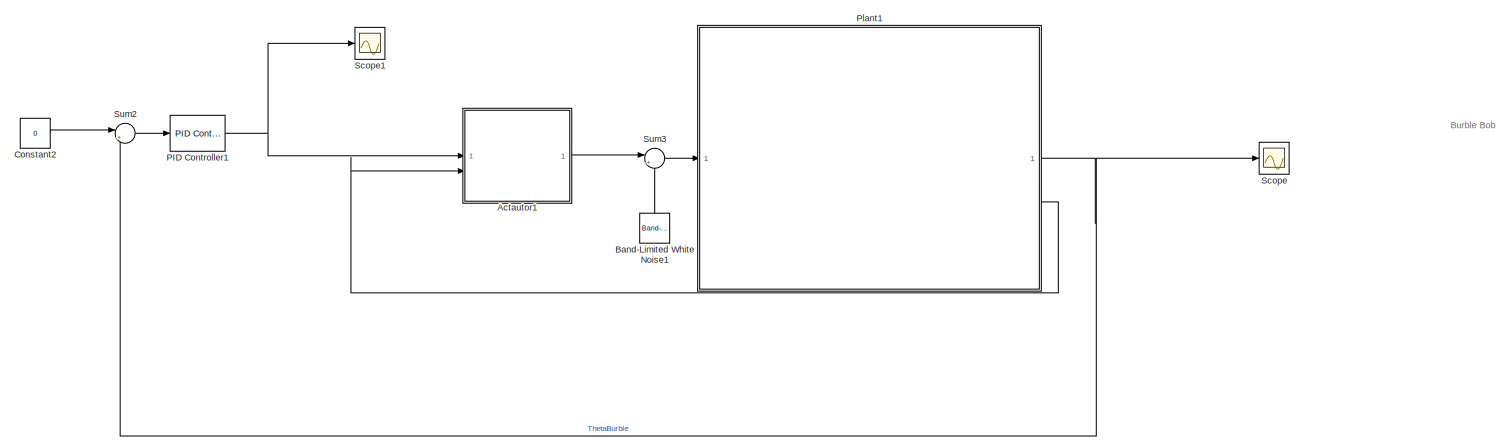
[diagram: root canvas - part 1/9, top center region]
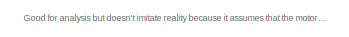
[diagram: root canvas - part 2/9, top left region]
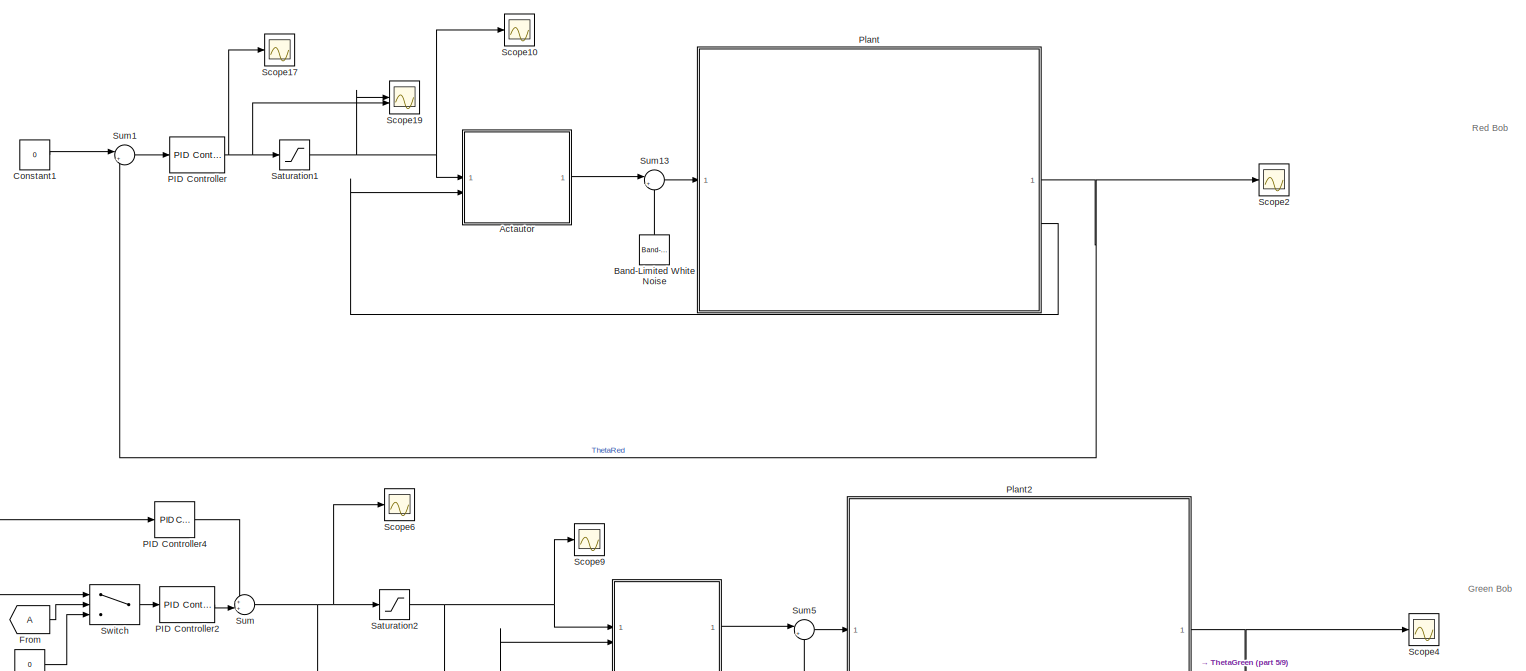
[diagram: root canvas - part 3/9, central region]
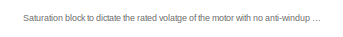
[diagram: root canvas - part 4/9, middle left region]
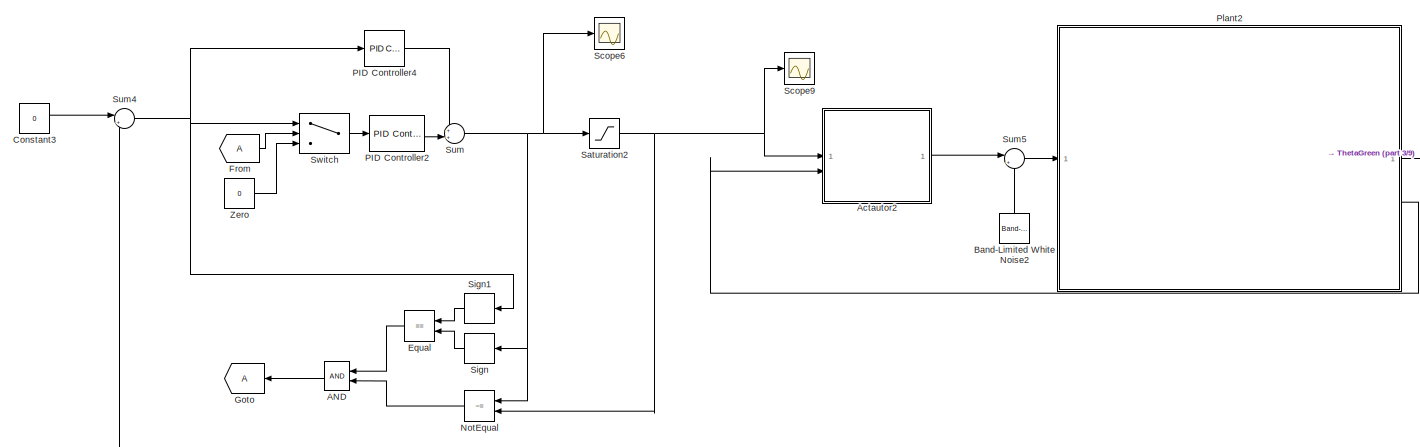
[diagram: root canvas - part 5/9, central region]
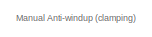
[diagram: root canvas - part 6/9, middle left region]
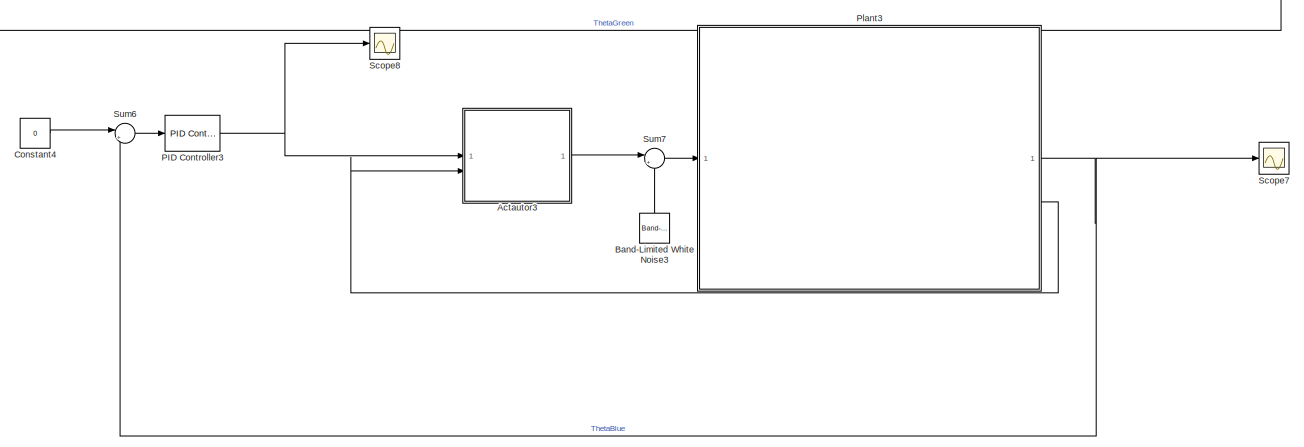
[diagram: root canvas - part 7/9, bottom center region]
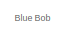
[diagram: root canvas - part 8/9, bottom right region]
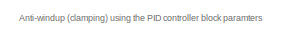
[diagram: root canvas - part 9/9, bottom left region]
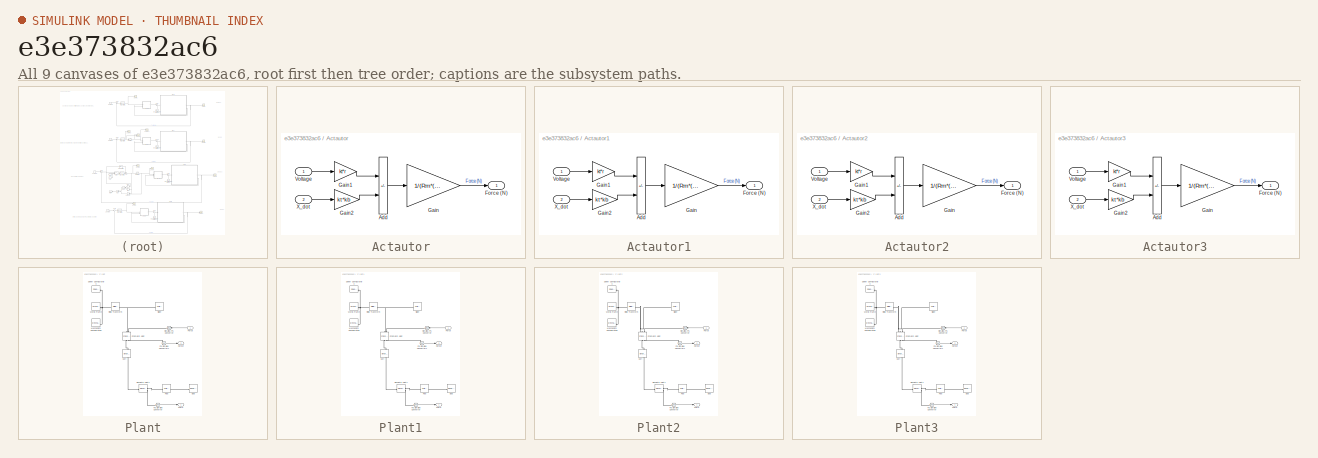
[diagram: thumbnail index - all 9 canvases of the model, root first then tree order]
MODEL slx_e3e373832ac6
KIND model
CONFIG AbsTol = 1e-3
CONFIG EnableMultiTasking = on
CONFIG FixedStep = auto
CONFIG MaxStep = auto
CONFIG MinStep = auto
CONFIG RelTol = 1e-3
CONFIG SampleTimeConstraint = Unconstrained
CONFIG SolverName = VariableStepAuto
CONFIG StartTime = 0.0
CONFIG StopTime = 25
BLOCK [Logic] AND
  AllPortsSameDT = off
  NameLocation = top
  OutDataTypeStr = boolean
BLOCK [SubSystem] Actautor
BLOCK [Sum] Actautor/Add
  IconShape = rectangular
  Inputs = +-
BLOCK [Outport] Actautor/Force (N)
  VectorParamsAs1DForOutWhenUnconnected = off
BLOCK [Gain] Actautor/Gain
  Gain = 1/(Rm*(r)^2)
BLOCK [Gain] Actautor/Gain1
  Gain = kt*r
BLOCK [Gain] Actautor/Gain2
  Gain = kt*kb
BLOCK [Inport] Actautor/Voltage
  NameLocation = top
BLOCK [Inport] Actautor/X_dot
  Port = 2
BLOCK [SubSystem] Actautor1
BLOCK [Sum] Actautor1/Add
  IconShape = rectangular
  Inputs = +-
BLOCK [Outport] Actautor1/Force (N)
  VectorParamsAs1DForOutWhenUnconnected = off
BLOCK [Gain] Actautor1/Gain
  Gain = 1/(Rm*(r)^2)
BLOCK [Gain] Actautor1/Gain1
  Gain = kt*r
BLOCK [Gain] Actautor1/Gain2
  Gain = kt*kb
BLOCK [Inport] Actautor1/Voltage
  NameLocation = top
BLOCK [Inport] Actautor1/X_dot
  Port = 2
BLOCK [SubSystem] Actautor2
BLOCK [Sum] Actautor2/Add
  IconShape = rectangular
  Inputs = +-
BLOCK [Outport] Actautor2/Force (N)
  VectorParamsAs1DForOutWhenUnconnected = off
BLOCK [Gain] Actautor2/Gain
  Gain = 1/(Rm*(r)^2)
BLOCK [Gain] Actautor2/Gain1
  Gain = kt*r
BLOCK [Gain] Actautor2/Gain2
  Gain = kt*kb
BLOCK [Inport] Actautor2/Voltage
  NameLocation = top
BLOCK [Inport] Actautor2/X_dot
  Port = 2
BLOCK [SubSystem] Actautor3
BLOCK [Sum] Actautor3/Add
  IconShape = rectangular
  Inputs = +-
BLOCK [Outport] Actautor3/Force (N)
  VectorParamsAs1DForOutWhenUnconnected = off
BLOCK [Gain] Actautor3/Gain
  Gain = 1/(Rm*(r)^2)
BLOCK [Gain] Actautor3/Gain1
  Gain = kt*r
BLOCK [Gain] Actautor3/Gain2
  Gain = kt*kb
BLOCK [Inport] Actautor3/Voltage
  NameLocation = top
BLOCK [Inport] Actautor3/X_dot
  Port = 2
BLOCK [Reference] Band-Limited White Noise  REF=simulink/Sources/Band-Limited
White Noise
  NameLocation = right
  SourceBlock = simulink/Sources/Band-Limited\nWhite Noise
  SourceType = Band-Limited White Noise.
BLOCK [Reference] Band-Limited White Noise1  REF=simulink/Sources/Band-Limited
White Noise
  NameLocation = right
  SourceBlock = simulink/Sources/Band-Limited\nWhite Noise
  SourceType = Band-Limited White Noise.
BLOCK [Reference] Band-Limited White Noise2  REF=simulink/Sources/Band-Limited
White Noise
  NameLocation = right
  SourceBlock = simulink/Sources/Band-Limited\nWhite Noise
  SourceType = Band-Limited White Noise.
BLOCK [Reference] Band-Limited White Noise3  REF=simulink/Sources/Band-Limited
White Noise
  NameLocation = right
  SourceBlock = simulink/Sources/Band-Limited\nWhite Noise
  SourceType = Band-Limited White Noise.
BLOCK [Constant] Constant1
  Value = 0
BLOCK [Constant] Constant2
  Value = 0
BLOCK [Constant] Constant3
  Value = 0
BLOCK [Constant] Constant4
  Value = 0
BLOCK [RelationalOperator] Equal
  InputSameDT = off
  NameLocation = top
  Operator = ==
  OutDataTypeStr = boolean
  RndMeth = Simplest
BLOCK [From] From
BLOCK [Goto] Goto
  NameLocation = top
BLOCK [RelationalOperator] NotEqual
  InputSameDT = off
  NameLocation = top
  Operator = ~=
  OutDataTypeStr = boolean
  RndMeth = Simplest
BLOCK [Reference] PID Controller  REF=slpidlib/PID Controller
  LibrarySourceBlock = simulink/Continuous/PID Controller
  SourceBlock = slpidlib/PID Controller
  SourceType = PID 1dof
BLOCK [Reference] PID Controller1  REF=slpidlib/PID Controller
  LibrarySourceBlock = simulink/Continuous/PID Controller
  SourceBlock = slpidlib/PID Controller
  SourceType = PID 1dof
BLOCK [Reference] PID Controller2  REF=slpidlib/PID Controller
  LibrarySourceBlock = simulink/Continuous/PID Controller
  SourceBlock = slpidlib/PID Controller
  SourceType = PID 1dof
BLOCK [Reference] PID Controller3  REF=slpidlib/PID Controller
  LibrarySourceBlock = simulink/Continuous/PID Controller
  SourceBlock = slpidlib/PID Controller
  SourceType = PID 1dof
BLOCK [Reference] PID Controller4  REF=slpidlib/PID Controller
  LibrarySourceBlock = simulink/Continuous/PID Controller
  SourceBlock = slpidlib/PID Controller
  SourceType = PID 1dof
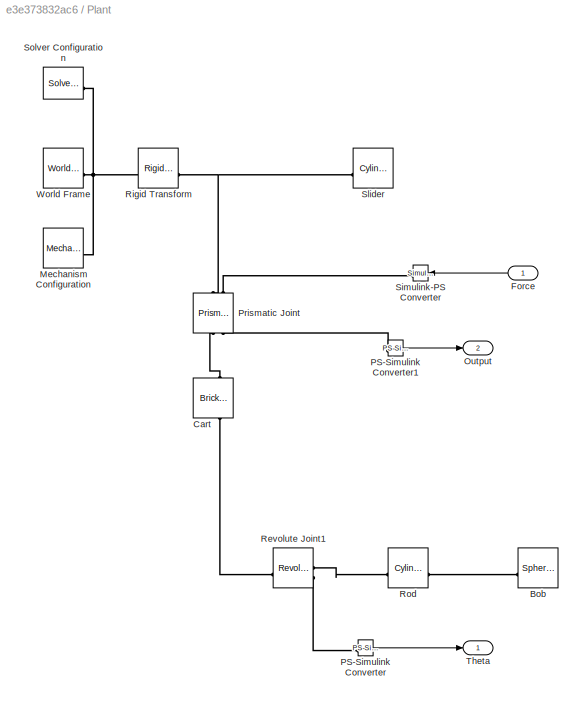
BLOCK [SubSystem] Plant
BLOCK [Reference] Plant/Bob  REF=sm_lib/Body Elements/Spherical Solid
  NameLocation = top
  SourceBlock = sm_lib/Body Elements/Spherical Solid
  SourceType = Spherical Solid
BLOCK [Reference] Plant/Cart  REF=sm_lib/Body Elements/Brick Solid
  NameLocation = right
  SourceBlock = sm_lib/Body Elements/Brick Solid
  SourceType = Brick Solid
BLOCK [Inport] Plant/Force
  NameLocation = top
BLOCK [Reference] Plant/Mechanism Configuration  REF=sm_lib/Utilities/Mechanism
Configuration
  SourceBlock = sm_lib/Utilities/Mechanism\nConfiguration
  SourceType = Mechanism\nConfiguration
BLOCK [Outport] Plant/Output
  Port = 2
BLOCK [Reference] Plant/PS-Simulink Converter  REF=nesl_utility/PS-Simulink
Converter
  SourceBlock = nesl_utility/PS-Simulink\nConverter
  SourceType = PS-Simulink\nConverter
BLOCK [Reference] Plant/PS-Simulink Converter1  REF=nesl_utility/PS-Simulink
Converter
  SourceBlock = nesl_utility/PS-Simulink\nConverter
  SourceType = PS-Simulink\nConverter
BLOCK [Reference] Plant/Prismatic Joint  REF=sm_lib/Joints/Prismatic
Joint
  NameLocation = left
  SourceBlock = sm_lib/Joints/Prismatic\nJoint
  SourceType = Prismatic\nJoint
BLOCK [Reference] Plant/Revolute Joint1  REF=sm_lib/Joints/Revolute Joint
  SourceBlock = sm_lib/Joints/Revolute Joint
  SourceType = Revolute Joint
BLOCK [Reference] Plant/Rigid Transform  REF=sm_lib/Frames and
Transforms/Rigid
Transform
  SourceBlock = sm_lib/Frames and\nTransforms/Rigid\nTransform
  SourceType = Rigid\nTransform
BLOCK [Reference] Plant/Rod  REF=sm_lib/Body Elements/Cylindrical Solid
  SourceBlock = sm_lib/Body Elements/Cylindrical Solid
  SourceType = Cylindrical Solid
BLOCK [Reference] Plant/Simulink-PS Converter  REF=nesl_utility/Simulink-PS
Converter
  NameLocation = top
  SourceBlock = nesl_utility/Simulink-PS\nConverter
  SourceType = Simulink-PS\nConverter
BLOCK [Reference] Plant/Slider  REF=sm_lib/Body Elements/Cylindrical Solid
  NameLocation = top
  SourceBlock = sm_lib/Body Elements/Cylindrical Solid
  SourceType = Cylindrical Solid
BLOCK [Reference] Plant/Solver Configuration  REF=nesl_utility/Solver
Configuration
  SourceBlock = nesl_utility/Solver\nConfiguration
  SourceType = Solver\nConfiguration
BLOCK [Outport] Plant/Theta
BLOCK [Reference] Plant/World Frame  REF=sm_lib/Frames and
Transforms/World Frame
  SourceBlock = sm_lib/Frames and\nTransforms/World Frame
  SourceType = World Frame
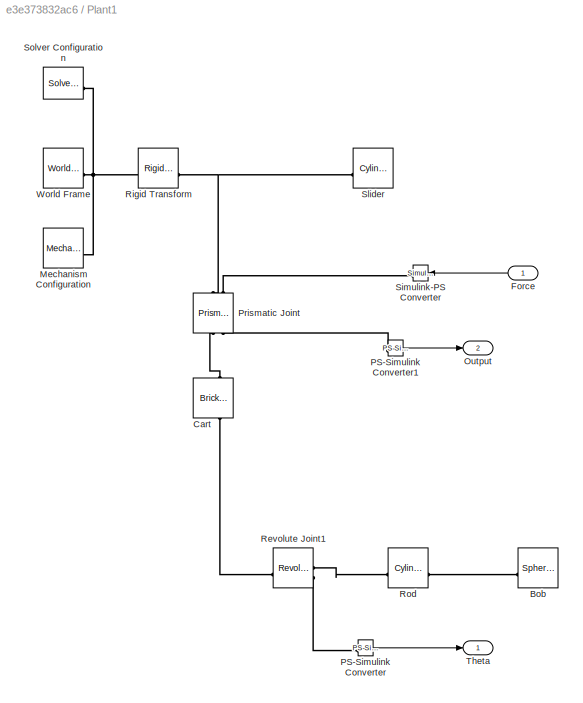
BLOCK [SubSystem] Plant1
BLOCK [Reference] Plant1/Bob  REF=sm_lib/Body Elements/Spherical Solid
  NameLocation = top
  SourceBlock = sm_lib/Body Elements/Spherical Solid
  SourceType = Spherical Solid
BLOCK [Reference] Plant1/Cart  REF=sm_lib/Body Elements/Brick Solid
  NameLocation = right
  SourceBlock = sm_lib/Body Elements/Brick Solid
  SourceType = Brick Solid
BLOCK [Inport] Plant1/Force
  NameLocation = top
BLOCK [Reference] Plant1/Mechanism Configuration  REF=sm_lib/Utilities/Mechanism
Configuration
  SourceBlock = sm_lib/Utilities/Mechanism\nConfiguration
  SourceType = Mechanism\nConfiguration
BLOCK [Outport] Plant1/Output
  Port = 2
BLOCK [Reference] Plant1/PS-Simulink Converter  REF=nesl_utility/PS-Simulink
Converter
  SourceBlock = nesl_utility/PS-Simulink\nConverter
  SourceType = PS-Simulink\nConverter
BLOCK [Reference] Plant1/PS-Simulink Converter1  REF=nesl_utility/PS-Simulink
Converter
  SourceBlock = nesl_utility/PS-Simulink\nConverter
  SourceType = PS-Simulink\nConverter
BLOCK [Reference] Plant1/Prismatic Joint  REF=sm_lib/Joints/Prismatic
Joint
  NameLocation = left
  SourceBlock = sm_lib/Joints/Prismatic\nJoint
  SourceType = Prismatic\nJoint
BLOCK [Reference] Plant1/Revolute Joint1  REF=sm_lib/Joints/Revolute Joint
  SourceBlock = sm_lib/Joints/Revolute Joint
  SourceType = Revolute Joint
BLOCK [Reference] Plant1/Rigid Transform  REF=sm_lib/Frames and
Transforms/Rigid
Transform
  SourceBlock = sm_lib/Frames and\nTransforms/Rigid\nTransform
  SourceType = Rigid\nTransform
BLOCK [Reference] Plant1/Rod  REF=sm_lib/Body Elements/Cylindrical Solid
  SourceBlock = sm_lib/Body Elements/Cylindrical Solid
  SourceType = Cylindrical Solid
BLOCK [Reference] Plant1/Simulink-PS Converter  REF=nesl_utility/Simulink-PS
Converter
  NameLocation = top
  SourceBlock = nesl_utility/Simulink-PS\nConverter
  SourceType = Simulink-PS\nConverter
BLOCK [Reference] Plant1/Slider  REF=sm_lib/Body Elements/Cylindrical Solid
  NameLocation = top
  SourceBlock = sm_lib/Body Elements/Cylindrical Solid
  SourceType = Cylindrical Solid
BLOCK [Reference] Plant1/Solver Configuration  REF=nesl_utility/Solver
Configuration
  SourceBlock = nesl_utility/Solver\nConfiguration
  SourceType = Solver\nConfiguration
BLOCK [Outport] Plant1/Theta
BLOCK [Reference] Plant1/World Frame  REF=sm_lib/Frames and
Transforms/World Frame
  SourceBlock = sm_lib/Frames and\nTransforms/World Frame
  SourceType = World Frame
BLOCK [SubSystem] Plant2
BLOCK [Reference] Plant2/Bob  REF=sm_lib/Body Elements/Spherical Solid
  NameLocation = top
  SourceBlock = sm_lib/Body Elements/Spherical Solid
  SourceType = Spherical Solid
BLOCK [Reference] Plant2/Cart  REF=sm_lib/Body Elements/Brick Solid
  NameLocation = right
  SourceBlock = sm_lib/Body Elements/Brick Solid
  SourceType = Brick Solid
BLOCK [Inport] Plant2/Force
  NameLocation = top
BLOCK [Reference] Plant2/Mechanism Configuration  REF=sm_lib/Utilities/Mechanism
Configuration
  SourceBlock = sm_lib/Utilities/Mechanism\nConfiguration
  SourceType = Mechanism\nConfiguration
BLOCK [Outport] Plant2/Output
  Port = 2
BLOCK [Reference] Plant2/PS-Simulink Converter  REF=nesl_utility/PS-Simulink
Converter
  SourceBlock = nesl_utility/PS-Simulink\nConverter
  SourceType = PS-Simulink\nConverter
BLOCK [Reference] Plant2/PS-Simulink Converter1  REF=nesl_utility/PS-Simulink
Converter
  SourceBlock = nesl_utility/PS-Simulink\nConverter
  SourceType = PS-Simulink\nConverter
BLOCK [Reference] Plant2/Prismatic Joint  REF=sm_lib/Joints/Prismatic
Joint
  NameLocation = left
  SourceBlock = sm_lib/Joints/Prismatic\nJoint
  SourceType = Prismatic\nJoint
BLOCK [Reference] Plant2/Revolute Joint1  REF=sm_lib/Joints/Revolute Joint
  SourceBlock = sm_lib/Joints/Revolute Joint
  SourceType = Revolute Joint
BLOCK [Reference] Plant2/Rigid Transform  REF=sm_lib/Frames and
Transforms/Rigid
Transform
  SourceBlock = sm_lib/Frames and\nTransforms/Rigid\nTransform
  SourceType = Rigid\nTransform
BLOCK [Reference] Plant2/Rod  REF=sm_lib/Body Elements/Cylindrical Solid
  SourceBlock = sm_lib/Body Elements/Cylindrical Solid
  SourceType = Cylindrical Solid
BLOCK [Reference] Plant2/Simulink-PS Converter  REF=nesl_utility/Simulink-PS
Converter
  NameLocation = top
  SourceBlock = nesl_utility/Simulink-PS\nConverter
  SourceType = Simulink-PS\nConverter
BLOCK [Reference] Plant2/Slider  REF=sm_lib/Body Elements/Cylindrical Solid
  NameLocation = top
  SourceBlock = sm_lib/Body Elements/Cylindrical Solid
  SourceType = Cylindrical Solid
BLOCK [Reference] Plant2/Solver Configuration  REF=nesl_utility/Solver
Configuration
  SourceBlock = nesl_utility/Solver\nConfiguration
  SourceType = Solver\nConfiguration
BLOCK [Outport] Plant2/Theta
BLOCK [Reference] Plant2/World Frame  REF=sm_lib/Frames and
Transforms/World Frame
  SourceBlock = sm_lib/Frames and\nTransforms/World Frame
  SourceType = World Frame
BLOCK [SubSystem] Plant3
BLOCK [Reference] Plant3/Bob  REF=sm_lib/Body Elements/Spherical Solid
  NameLocation = top
  SourceBlock = sm_lib/Body Elements/Spherical Solid
  SourceType = Spherical Solid
BLOCK [Reference] Plant3/Cart  REF=sm_lib/Body Elements/Brick Solid
  NameLocation = right
  SourceBlock = sm_lib/Body Elements/Brick Solid
  SourceType = Brick Solid
BLOCK [Inport] Plant3/Force
  NameLocation = top
BLOCK [Reference] Plant3/Mechanism Configuration  REF=sm_lib/Utilities/Mechanism
Configuration
  SourceBlock = sm_lib/Utilities/Mechanism\nConfiguration
  SourceType = Mechanism\nConfiguration
BLOCK [Outport] Plant3/Output
  Port = 2
BLOCK [Reference] Plant3/PS-Simulink Converter  REF=nesl_utility/PS-Simulink
Converter
  SourceBlock = nesl_utility/PS-Simulink\nConverter
  SourceType = PS-Simulink\nConverter
BLOCK [Reference] Plant3/PS-Simulink Converter1  REF=nesl_utility/PS-Simulink
Converter
  SourceBlock = nesl_utility/PS-Simulink\nConverter
  SourceType = PS-Simulink\nConverter
BLOCK [Reference] Plant3/Prismatic Joint  REF=sm_lib/Joints/Prismatic
Joint
  NameLocation = left
  SourceBlock = sm_lib/Joints/Prismatic\nJoint
  SourceType = Prismatic\nJoint
BLOCK [Reference] Plant3/Revolute Joint1  REF=sm_lib/Joints/Revolute Joint
  SourceBlock = sm_lib/Joints/Revolute Joint
  SourceType = Revolute Joint
BLOCK [Reference] Plant3/Rigid Transform  REF=sm_lib/Frames and
Transforms/Rigid
Transform
  SourceBlock = sm_lib/Frames and\nTransforms/Rigid\nTransform
  SourceType = Rigid\nTransform
BLOCK [Reference] Plant3/Rod  REF=sm_lib/Body Elements/Cylindrical Solid
  SourceBlock = sm_lib/Body Elements/Cylindrical Solid
  SourceType = Cylindrical Solid
BLOCK [Reference] Plant3/Simulink-PS Converter  REF=nesl_utility/Simulink-PS
Converter
  NameLocation = top
  SourceBlock = nesl_utility/Simulink-PS\nConverter
  SourceType = Simulink-PS\nConverter
BLOCK [Reference] Plant3/Slider  REF=sm_lib/Body Elements/Cylindrical Solid
  NameLocation = top
  SourceBlock = sm_lib/Body Elements/Cylindrical Solid
  SourceType = Cylindrical Solid
BLOCK [Reference] Plant3/Solver Configuration  REF=nesl_utility/Solver
Configuration
  SourceBlock = nesl_utility/Solver\nConfiguration
  SourceType = Solver\nConfiguration
BLOCK [Outport] Plant3/Theta
BLOCK [Reference] Plant3/World Frame  REF=sm_lib/Frames and
Transforms/World Frame
  SourceBlock = sm_lib/Frames and\nTransforms/World Frame
  SourceType = World Frame
BLOCK [Saturate] Saturation1
  LowerLimit = -24
  UpperLimit = 24
BLOCK [Saturate] Saturation2
  LowerLimit = -24
  UpperLimit = 24
BLOCK [Scope] Scope
  Floating = off
  NumInputPorts = 1
  ScopeSpecificationString = Simulink.scopes.TimeScopeBlockCfg('CurrentConfiguration', extmgr.ConfigurationSet(extmgr.Configuration('Core','General UI',true),extmgr.Configuration('Core','Source UI',true),extmgr.Configuration('Sources','WiredSimulink',true,'DataLoggingVariableName','ScopeData3'),extmgr.Configuration('Visuals','Time Domain',true),extmgr.Configuration('Tools','Plot Navigation',true),extmgr.Configuration('Tools',...<+40ch>
BLOCK [Scope] Scope1
  Floating = off
  NumInputPorts = 1
  ScopeSpecificationString = Simulink.scopes.TimeScopeBlockCfg('CurrentConfiguration', extmgr.ConfigurationSet(extmgr.Configuration('Core','General UI',true),extmgr.Configuration('Core','Source UI',true),extmgr.Configuration('Sources','WiredSimulink',true,'DataLoggingVariableName','ScopeData1'),extmgr.Configuration('Visuals','Time Domain',true,'SerializedDisplays',{struct('MinYLimReal','-70.35101','MaxYLimReal','57.26584','YL...<+1436ch>
BLOCK [Scope] Scope10
  Floating = off
  NumInputPorts = 1
  ScopeSpecificationString = Simulink.scopes.TimeScopeBlockCfg('CurrentConfiguration', extmgr.ConfigurationSet(extmgr.Configuration('Core','General UI',true),extmgr.Configuration('Core','Source UI',true),extmgr.Configuration('Sources','WiredSimulink',true,'DataLoggingVariableName','ScopeData11'),extmgr.Configuration('Visuals','Time Domain',true,'SerializedDisplays',{struct('MinYLimReal','-30.00000','MaxYLimReal','30.00000','Y...<+1377ch>
BLOCK [Scope] Scope17
  Floating = off
  NumInputPorts = 1
  ScopeSpecificationString = Simulink.scopes.TimeScopeBlockCfg('CurrentConfiguration', extmgr.ConfigurationSet(extmgr.Configuration('Core','General UI',true),extmgr.Configuration('Core','Source UI',true),extmgr.Configuration('Sources','WiredSimulink',true,'DataLoggingVariableName','ScopeData1'),extmgr.Configuration('Visuals','Time Domain',true,'SerializedDisplays',{struct('MinYLimReal','-486.1387','MaxYLimReal','655.83515','Y...<+1410ch>
BLOCK [Scope] Scope19
  Floating = off
  NumInputPorts = 2
  ScopeSpecificationString = Simulink.scopes.TimeScopeBlockCfg('CurrentConfiguration', extmgr.ConfigurationSet(extmgr.Configuration('Core','General UI',true),extmgr.Configuration('Core','Source UI',true),extmgr.Configuration('Sources','WiredSimulink',true,'DataLoggingVariableName','ScopeData2'),extmgr.Configuration('Visuals','Time Domain',true,'SerializedDisplays',{struct('MinYLimReal','23.99998','MaxYLimReal','24.000009','YL...<+1439ch>
BLOCK [Scope] Scope2
  Floating = off
  NumInputPorts = 1
  ScopeSpecificationString = Simulink.scopes.TimeScopeBlockCfg('CurrentConfiguration', extmgr.ConfigurationSet(extmgr.Configuration('Core','General UI',true),extmgr.Configuration('Core','Source UI',true),extmgr.Configuration('Sources','WiredSimulink',true,'DataLoggingVariableName','ScopeData4'),extmgr.Configuration('Visuals','Time Domain',true),extmgr.Configuration('Tools','Plot Navigation',true),extmgr.Configuration('Tools',...<+40ch>
BLOCK [Scope] Scope4
  Floating = off
  NumInputPorts = 1
  ScopeSpecificationString = Simulink.scopes.TimeScopeBlockCfg('CurrentConfiguration', extmgr.ConfigurationSet(extmgr.Configuration('Core','General UI',true),extmgr.Configuration('Core','Source UI',true),extmgr.Configuration('Sources','WiredSimulink',true,'DataLoggingVariableName','ScopeData6'),extmgr.Configuration('Visuals','Time Domain',true),extmgr.Configuration('Tools','Plot Navigation',true),extmgr.Configuration('Tools',...<+40ch>
BLOCK [Scope] Scope6
  Floating = off
  NumInputPorts = 1
  ScopeSpecificationString = Simulink.scopes.TimeScopeBlockCfg('CurrentConfiguration', extmgr.ConfigurationSet(extmgr.Configuration('Core','General UI',true),extmgr.Configuration('Core','Source UI',true),extmgr.Configuration('Sources','WiredSimulink',true,'DataLoggingVariableName','ScopeData5'),extmgr.Configuration('Visuals','Time Domain',true,'SerializedDisplays',{struct('MinYLimReal','-486.1387','MaxYLimReal','655.83515','Y...<+1399ch>
BLOCK [Scope] Scope7
  Floating = off
  NumInputPorts = 1
  ScopeSpecificationString = Simulink.scopes.TimeScopeBlockCfg('CurrentConfiguration', extmgr.ConfigurationSet(extmgr.Configuration('Core','General UI',true),extmgr.Configuration('Core','Source UI',true),extmgr.Configuration('Sources','WiredSimulink',true,'DataLoggingVariableName','ScopeData8'),extmgr.Configuration('Visuals','Time Domain',true),extmgr.Configuration('Tools','Plot Navigation',true),extmgr.Configuration('Tools',...<+40ch>
BLOCK [Scope] Scope8
  Floating = off
  NumInputPorts = 1
  ScopeSpecificationString = Simulink.scopes.TimeScopeBlockCfg('CurrentConfiguration', extmgr.ConfigurationSet(extmgr.Configuration('Core','General UI',true),extmgr.Configuration('Core','Source UI',true),extmgr.Configuration('Sources','WiredSimulink',true,'DataLoggingVariableName','ScopeData9'),extmgr.Configuration('Visuals','Time Domain',true,'SerializedDisplays',{struct('MinYLimReal','-30.00000','MaxYLimReal','30.00000','YL...<+1405ch>
BLOCK [Scope] Scope9
  Floating = off
  NumInputPorts = 1
  ScopeSpecificationString = Simulink.scopes.TimeScopeBlockCfg('CurrentConfiguration', extmgr.ConfigurationSet(extmgr.Configuration('Core','General UI',true),extmgr.Configuration('Core','Source UI',true),extmgr.Configuration('Sources','WiredSimulink',true,'DataLoggingVariableName','ScopeData10'),extmgr.Configuration('Visuals','Time Domain',true,'SerializedDisplays',{struct('MinYLimReal','-30.00000','MaxYLimReal','30.00000','Y...<+1377ch>
BLOCK [Signum] Sign
  NameLocation = top
BLOCK [Signum] Sign1
  NameLocation = top
BLOCK [Sum] Sum
  Inputs = ++|
BLOCK [Sum] Sum1
  Inputs = |+-
BLOCK [Sum] Sum13
  Inputs = |++
BLOCK [Sum] Sum2
  Inputs = |+-
BLOCK [Sum] Sum3
  Inputs = |++
BLOCK [Sum] Sum4
  Inputs = |+-
BLOCK [Sum] Sum5
  Inputs = |++
BLOCK [Sum] Sum6
  Inputs = |+-
BLOCK [Sum] Sum7
  Inputs = |++
BLOCK [Switch] Switch
  Criteria = u2 ~= 0
  InputSameDT = off
  SaturateOnIntegerOverflow = off
BLOCK [Constant] Zero
  OutDataTypeStr = Inherit: Inherit via back propagation
  Value = 0
ANNOTATION (root): Blue Bob
ANNOTATION (root): Green Bob
ANNOTATION (root): Burble Bob
ANNOTATION (root): Red Bob
ANNOTATION (root): Anti-windup (clamping) using the PID controller block paramters
ANNOTATION (root): Good for analysis but doesn't imitate reality because it assumes that the motor voltage can be infinte hence the speed and the torque are aslo infinte
ANNOTATION (root): Manual Anti-windup (clamping)
ANNOTATION (root): Saturation block to dictate the rated volatge of the motor with no anti-windup techniques
LINE AND:1 -> Goto:1
LINE Actautor/Add:1 -> Actautor/Gain:1
LINE Actautor/Gain1:1 -> Actautor/Add:1
LINE Actautor/Gain2:1 -> Actautor/Add:2
LINE Actautor/Gain:1 -> Actautor/Force (N):1
LINE Actautor/Voltage:1 -> Actautor/Gain1:1
LINE Actautor/X_dot:1 -> Actautor/Gain2:1
LINE Actautor1/Add:1 -> Actautor1/Gain:1
LINE Actautor1/Gain1:1 -> Actautor1/Add:1
LINE Actautor1/Gain2:1 -> Actautor1/Add:2
LINE Actautor1/Gain:1 -> Actautor1/Force (N):1
LINE Actautor1/Voltage:1 -> Actautor1/Gain1:1
LINE Actautor1/X_dot:1 -> Actautor1/Gain2:1
LINE Actautor1:1 -> Sum3:1
LINE Actautor2/Add:1 -> Actautor2/Gain:1
LINE Actautor2/Gain1:1 -> Actautor2/Add:1
LINE Actautor2/Gain2:1 -> Actautor2/Add:2
LINE Actautor2/Gain:1 -> Actautor2/Force (N):1
LINE Actautor2/Voltage:1 -> Actautor2/Gain1:1
LINE Actautor2/X_dot:1 -> Actautor2/Gain2:1
LINE Actautor2:1 -> Sum5:1
LINE Actautor3/Add:1 -> Actautor3/Gain:1
LINE Actautor3/Gain1:1 -> Actautor3/Add:1
LINE Actautor3/Gain2:1 -> Actautor3/Add:2
LINE Actautor3/Gain:1 -> Actautor3/Force (N):1
LINE Actautor3/Voltage:1 -> Actautor3/Gain1:1
LINE Actautor3/X_dot:1 -> Actautor3/Gain2:1
LINE Actautor3:1 -> Sum7:1
LINE Actautor:1 -> Sum13:1
LINE Band-Limited White Noise1:1 -> Sum3:2
LINE Band-Limited White Noise2:1 -> Sum5:2
LINE Band-Limited White Noise3:1 -> Sum7:2
LINE Band-Limited White Noise:1 -> Sum13:2
LINE Constant1:1 -> Sum1:1
LINE Constant2:1 -> Sum2:1
LINE Constant3:1 -> Sum4:1
LINE Constant4:1 -> Sum6:1
LINE Equal:1 -> AND:1
LINE From:1 -> Switch:2
LINE NotEqual:1 -> AND:2
NET PID Controller1:1 -> Actautor1:1, Scope1:1
LINE PID Controller2:1 -> Sum:2
NET PID Controller3:1 -> Actautor3:1, Scope8:1
LINE PID Controller4:1 -> Sum:1
NET PID Controller:1 -> Saturation1:1, Scope17:1, Scope19:2
LINE Plant/Force:1 -> Plant/Simulink-PS Converter:1
LINE Plant/PS-Simulink Converter1:1 -> Plant/Output:1
LINE Plant/PS-Simulink Converter:1 -> Plant/Theta:1
LINE Plant1/Force:1 -> Plant1/Simulink-PS Converter:1
LINE Plant1/PS-Simulink Converter1:1 -> Plant1/Output:1
LINE Plant1/PS-Simulink Converter:1 -> Plant1/Theta:1
NET Plant1:1 -> Scope:1, Sum2:2
LINE Plant1:2 -> Actautor1:2
LINE Plant2/Force:1 -> Plant2/Simulink-PS Converter:1
LINE Plant2/PS-Simulink Converter1:1 -> Plant2/Output:1
LINE Plant2/PS-Simulink Converter:1 -> Plant2/Theta:1
NET Plant2:1 -> Scope4:1, Sum4:2
LINE Plant2:2 -> Actautor2:2
LINE Plant3/Force:1 -> Plant3/Simulink-PS Converter:1
LINE Plant3/PS-Simulink Converter1:1 -> Plant3/Output:1
LINE Plant3/PS-Simulink Converter:1 -> Plant3/Theta:1
NET Plant3:1 -> Scope7:1, Sum6:2
LINE Plant3:2 -> Actautor3:2
NET Plant:1 -> Scope2:1, Sum1:2
LINE Plant:2 -> Actautor:2
NET Saturation1:1 -> Actautor:1, Scope10:1, Scope19:1
NET Saturation2:1 -> Actautor2:1, NotEqual:2, Scope9:1
LINE Sign1:1 -> Equal:1
LINE Sign:1 -> Equal:2
LINE Sum13:1 -> Plant:1
LINE Sum1:1 -> PID Controller:1
LINE Sum2:1 -> PID Controller1:1
LINE Sum3:1 -> Plant1:1
NET Sum4:1 -> PID Controller4:1, Sign1:1, Switch:1
LINE Sum5:1 -> Plant2:1
LINE Sum6:1 -> PID Controller3:1
LINE Sum7:1 -> Plant3:1
NET Sum:1 -> NotEqual:1, Saturation2:1, Scope6:1, Sign:1
LINE Switch:1 -> PID Controller2:1
LINE Zero:1 -> Switch:3
PLINE Plant/Bob:RConn1 -- Plant/Rod:RConn1
PLINE Plant/Cart:LConn1 -- Plant/Revolute Joint1:LConn1
PLINE Plant/Cart:RConn1 -- Plant/Prismatic Joint:RConn1
PNET net1: Plant/Mechanism Configuration:RConn1 -- Plant/Rigid Transform:LConn1 -- Plant/Solver Configuration:RConn1 -- Plant/World Frame:RConn1
PLINE Plant/PS-Simulink Converter1:LConn1 -- Plant/Prismatic Joint:RConn2
PLINE Plant/PS-Simulink Converter:LConn1 -- Plant/Revolute Joint1:RConn2
PNET net2: Plant/Prismatic Joint:LConn1 -- Plant/Rigid Transform:RConn1 -- Plant/Slider:RConn1
PLINE Plant/Prismatic Joint:LConn2 -- Plant/Simulink-PS Converter:RConn1
PLINE Plant/Revolute Joint1:RConn1 -- Plant/Rod:LConn1
PLINE Plant1/Bob:RConn1 -- Plant1/Rod:RConn1
PLINE Plant1/Cart:LConn1 -- Plant1/Revolute Joint1:LConn1
PLINE Plant1/Cart:RConn1 -- Plant1/Prismatic Joint:RConn1
PNET net3: Plant1/Mechanism Configuration:RConn1 -- Plant1/Rigid Transform:LConn1 -- Plant1/Solver Configuration:RConn1 -- Plant1/World Frame:RConn1
PLINE Plant1/PS-Simulink Converter1:LConn1 -- Plant1/Prismatic Joint:RConn2
PLINE Plant1/PS-Simulink Converter:LConn1 -- Plant1/Revolute Joint1:RConn2
PNET net4: Plant1/Prismatic Joint:LConn1 -- Plant1/Rigid Transform:RConn1 -- Plant1/Slider:RConn1
PLINE Plant1/Prismatic Joint:LConn2 -- Plant1/Simulink-PS Converter:RConn1
PLINE Plant1/Revolute Joint1:RConn1 -- Plant1/Rod:LConn1
PLINE Plant2/Bob:RConn1 -- Plant2/Rod:RConn1
PLINE Plant2/Cart:LConn1 -- Plant2/Revolute Joint1:LConn1
PLINE Plant2/Cart:RConn1 -- Plant2/Prismatic Joint:RConn1
PNET net5: Plant2/Mechanism Configuration:RConn1 -- Plant2/Rigid Transform:LConn1 -- Plant2/Solver Configuration:RConn1 -- Plant2/World Frame:RConn1
PLINE Plant2/PS-Simulink Converter1:LConn1 -- Plant2/Prismatic Joint:RConn2
PLINE Plant2/PS-Simulink Converter:LConn1 -- Plant2/Revolute Joint1:RConn2
PNET net6: Plant2/Prismatic Joint:LConn1 -- Plant2/Rigid Transform:RConn1 -- Plant2/Slider:RConn1
PLINE Plant2/Prismatic Joint:LConn2 -- Plant2/Simulink-PS Converter:RConn1
PLINE Plant2/Revolute Joint1:RConn1 -- Plant2/Rod:LConn1
PLINE Plant3/Bob:RConn1 -- Plant3/Rod:RConn1
PLINE Plant3/Cart:LConn1 -- Plant3/Revolute Joint1:LConn1
PLINE Plant3/Cart:RConn1 -- Plant3/Prismatic Joint:RConn1
PNET net7: Plant3/Mechanism Configuration:RConn1 -- Plant3/Rigid Transform:LConn1 -- Plant3/Solver Configuration:RConn1 -- Plant3/World Frame:RConn1
PLINE Plant3/PS-Simulink Converter1:LConn1 -- Plant3/Prismatic Joint:RConn2
PLINE Plant3/PS-Simulink Converter:LConn1 -- Plant3/Revolute Joint1:RConn2
PNET net8: Plant3/Prismatic Joint:LConn1 -- Plant3/Rigid Transform:RConn1 -- Plant3/Slider:RConn1
PLINE Plant3/Prismatic Joint:LConn2 -- Plant3/Simulink-PS Converter:RConn1
PLINE Plant3/Revolute Joint1:RConn1 -- Plant3/Rod:LConn1
note: NET lines group one-source signal fan-out (src -> all destinations, sorted); 1:1 wires keep LINE; PNET lines group multi-terminal physical nets as a canonical sorted terminal list (undirected conserving connections); 2-terminal nets keep the pairwise PLINE form
